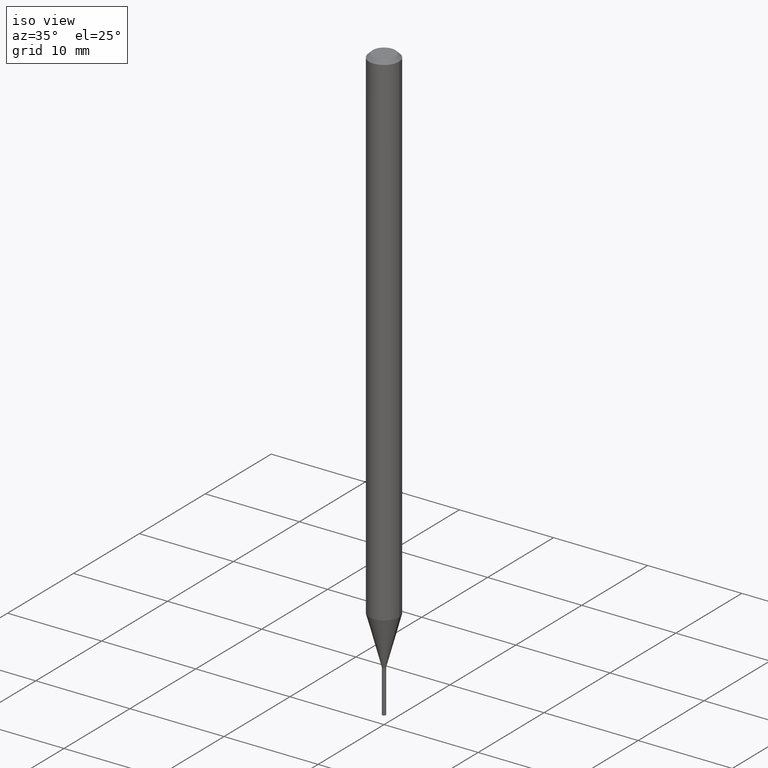
[diagram: clean part render]
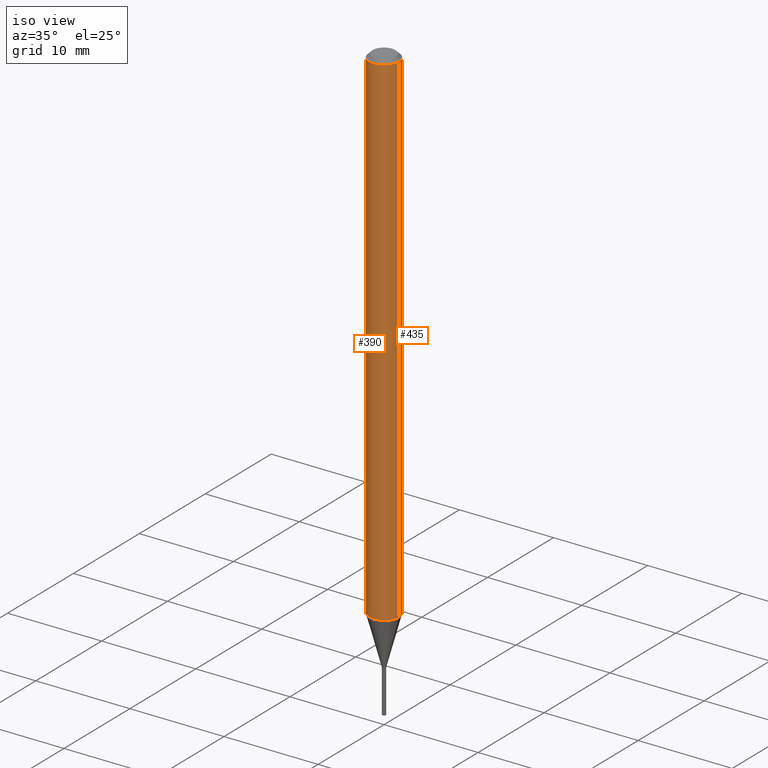
[diagram: same view with one multi-face feature highlighted, each face labeled with its STEP entity id]
A machine part, iso view. The highlighted faces form ONE feature: a constant-radius fillet chain: 2 tangent blend faces with common blend radius 1.5875 mm. The faces share edges in the B-rep.
Their STEP definitions:
[1] entity #390 (Cylinder):
#9 = ORIENTED_EDGE ( 'NONE', *, *, #178, .F. ) ;
#16 = CARTESIAN_POINT ( 'NONE',  ( -0.06250000000000000000, -6.939476280002764549E-15, -2.114737205583710811 ) ) ;
#44 = CARTESIAN_POINT ( 'NONE',  ( 5.171523869534089269E-29, -7.383565489852826376E-15, -2.114737205583710811 ) ) ;
#48 = VERTEX_POINT ( 'NONE', #207 ) ;
#77 = DIRECTION ( 'NONE',  ( -2.445468806185136597E-29, 3.491481338843145583E-15, 1.000000000000000000 ) ) ;
#82 = CARTESIAN_POINT ( 'NONE',  ( 0.06250000000000000000, -7.820000657208219623E-15, -2.114737205583710811 ) ) ;
#90 = DIRECTION ( 'NONE',  ( 1.000000000000000000, -6.982962677686266711E-15, 4.876176775795935793E-29 ) ) ;
#97 = CARTESIAN_POINT ( 'NONE',  ( 0.06250000000000000000, -4.888073874380388472E-16, -0.01499999999999999944 ) ) ;
#110 = ORIENTED_EDGE ( 'NONE', *, *, #237, .F. ) ;
#119 = CIRCLE ( 'NONE', #203, 0.06250000000000000000 ) ;
#122 = DIRECTION ( 'NONE',  ( 1.000000000000000000, -6.982962677686266711E-15, 0.000000000000000000 ) ) ;
#123 = ORIENTED_EDGE ( 'NONE', *, *, #255, .T. ) ;
#135 = AXIS2_PLACEMENT_3D ( 'NONE', #296, #77, #122 ) ;
#136 = DIRECTION ( 'NONE',  ( -2.445468806185136597E-29, 3.491481338843145583E-15, 1.000000000000000000 ) ) ;
#156 = DIRECTION ( 'NONE',  ( -2.445468806185136597E-29, 3.491481338843145583E-15, 1.000000000000000000 ) ) ;
#178 = EDGE_CURVE ( 'NONE', #290, #48, #354, .T. ) ;
#181 = CARTESIAN_POINT ( 'NONE',  ( -0.06250000000000000000, 4.440892098500626162E-16, -3.074334431409316114E-30 ) ) ;
#188 = DIRECTION ( 'NONE',  ( -2.445468806185136877E-29, 3.491481338843145188E-15, 1.000000000000000000 ) ) ;
#192 = EDGE_CURVE ( 'NONE', #248, #329, #388, .T. ) ;
#201 = CYLINDRICAL_SURFACE ( 'NONE', #253, 0.06250000000000000000 ) ;
#203 = AXIS2_PLACEMENT_3D ( 'NONE', #44, #156, #439 ) ;
#207 = CARTESIAN_POINT ( 'NONE',  ( -0.06250000000000000000, -3.273879645117674703E-15, -0.01499999999999999944 ) ) ;
#211 = VECTOR ( 'NONE', #188, 39.37007874015748143 ) ;
#237 = EDGE_CURVE ( 'NONE', #48, #329, #257, .T. ) ;
#248 = VERTEX_POINT ( 'NONE', #82 ) ;
#253 = AXIS2_PLACEMENT_3D ( 'NONE', #336, #136, #90 ) ;
#255 = EDGE_CURVE ( 'NONE', #290, #248, #119, .T. ) ;
#257 = CIRCLE ( 'NONE', #135, 0.06250000000000000000 ) ;
#259 = ORIENTED_EDGE ( 'NONE', *, *, #192, .T. ) ;
#265 = DIRECTION ( 'NONE',  ( -2.445468806185136877E-29, 3.491481338843145188E-15, 1.000000000000000000 ) ) ;
#290 = VERTEX_POINT ( 'NONE', #16 ) ;
#296 = CARTESIAN_POINT ( 'NONE',  ( 3.668203209277705088E-31, -5.237222008264718399E-17, -0.01499999999999999944 ) ) ;
#321 = EDGE_LOOP ( 'NONE', ( #9, #123, #259, #110 ) ) ;
#329 = VERTEX_POINT ( 'NONE', #97 ) ;
#336 = CARTESIAN_POINT ( 'NONE',  ( 0.000000000000000000, 0.000000000000000000, 0.000000000000000000 ) ) ;
#354 = LINE ( 'NONE', #181, #398 ) ;
#388 = LINE ( 'NONE', #431, #211 ) ;
#390 = ADVANCED_FACE ( 'NONE', ( #453 ), #201, .T. ) ;
#398 = VECTOR ( 'NONE', #265, 39.37007874015748143 ) ;
#431 = CARTESIAN_POINT ( 'NONE',  ( 0.06250000000000000000, -4.364351673553916694E-16, 3.047610484872459871E-30 ) ) ;
#439 = DIRECTION ( 'NONE',  ( 1.000000000000000000, -6.982962677686262766E-15, 0.000000000000000000 ) ) ;
#453 = FACE_OUTER_BOUND ( 'NONE', #321, .T. ) ;
[2] entity #435 (Cylinder):
#14 = EDGE_CURVE ( 'NONE', #329, #48, #350, .T. ) ;
#16 = CARTESIAN_POINT ( 'NONE',  ( -0.06250000000000000000, -6.939476280002764549E-15, -2.114737205583710811 ) ) ;
#22 = CARTESIAN_POINT ( 'NONE',  ( 0.000000000000000000, 0.000000000000000000, 0.000000000000000000 ) ) ;
#31 = AXIS2_PLACEMENT_3D ( 'NONE', #226, #190, #328 ) ;
#48 = VERTEX_POINT ( 'NONE', #207 ) ;
#55 = DIRECTION ( 'NONE',  ( -2.445468806185136597E-29, 3.491481338843145583E-15, 1.000000000000000000 ) ) ;
#82 = CARTESIAN_POINT ( 'NONE',  ( 0.06250000000000000000, -7.820000657208219623E-15, -2.114737205583710811 ) ) ;
#87 = ORIENTED_EDGE ( 'NONE', *, *, #192, .F. ) ;
#96 = CYLINDRICAL_SURFACE ( 'NONE', #377, 0.06250000000000000000 ) ;
#97 = CARTESIAN_POINT ( 'NONE',  ( 0.06250000000000000000, -4.888073874380388472E-16, -0.01499999999999999944 ) ) ;
#178 = EDGE_CURVE ( 'NONE', #290, #48, #354, .T. ) ;
#181 = CARTESIAN_POINT ( 'NONE',  ( -0.06250000000000000000, 4.440892098500626162E-16, -3.074334431409316114E-30 ) ) ;
#188 = DIRECTION ( 'NONE',  ( -2.445468806185136877E-29, 3.491481338843145188E-15, 1.000000000000000000 ) ) ;
#190 = DIRECTION ( 'NONE',  ( -2.445468806185136597E-29, 3.491481338843145583E-15, 1.000000000000000000 ) ) ;
#192 = EDGE_CURVE ( 'NONE', #248, #329, #388, .T. ) ;
#207 = CARTESIAN_POINT ( 'NONE',  ( -0.06250000000000000000, -3.273879645117674703E-15, -0.01499999999999999944 ) ) ;
#209 = DIRECTION ( 'NONE',  ( -2.445468806185136597E-29, 3.491481338843145583E-15, 1.000000000000000000 ) ) ;
#211 = VECTOR ( 'NONE', #188, 39.37007874015748143 ) ;
#226 = CARTESIAN_POINT ( 'NONE',  ( 5.171523869534089269E-29, -7.383565489852826376E-15, -2.114737205583710811 ) ) ;
#248 = VERTEX_POINT ( 'NONE', #82 ) ;
#251 = EDGE_CURVE ( 'NONE', #248, #290, #427, .T. ) ;
#263 = ORIENTED_EDGE ( 'NONE', *, *, #251, .T. ) ;
#265 = DIRECTION ( 'NONE',  ( -2.445468806185136877E-29, 3.491481338843145188E-15, 1.000000000000000000 ) ) ;
#271 = FACE_OUTER_BOUND ( 'NONE', #324, .T. ) ;
#277 = AXIS2_PLACEMENT_3D ( 'NONE', #361, #55, #295 ) ;
#290 = VERTEX_POINT ( 'NONE', #16 ) ;
#295 = DIRECTION ( 'NONE',  ( 1.000000000000000000, -6.982962677686266711E-15, 0.000000000000000000 ) ) ;
#307 = DIRECTION ( 'NONE',  ( 1.000000000000000000, -6.982962677686266711E-15, 4.876176775795935793E-29 ) ) ;
#324 = EDGE_LOOP ( 'NONE', ( #263, #384, #358, #87 ) ) ;
#328 = DIRECTION ( 'NONE',  ( 1.000000000000000000, -6.982962677686262766E-15, 0.000000000000000000 ) ) ;
#329 = VERTEX_POINT ( 'NONE', #97 ) ;
#350 = CIRCLE ( 'NONE', #277, 0.06250000000000000000 ) ;
#354 = LINE ( 'NONE', #181, #398 ) ;
#358 = ORIENTED_EDGE ( 'NONE', *, *, #14, .F. ) ;
#361 = CARTESIAN_POINT ( 'NONE',  ( 3.668203209277705088E-31, -5.237222008264718399E-17, -0.01499999999999999944 ) ) ;
#377 = AXIS2_PLACEMENT_3D ( 'NONE', #22, #209, #307 ) ;
#384 = ORIENTED_EDGE ( 'NONE', *, *, #178, .T. ) ;
#388 = LINE ( 'NONE', #431, #211 ) ;
#398 = VECTOR ( 'NONE', #265, 39.37007874015748143 ) ;
#427 = CIRCLE ( 'NONE', #31, 0.06250000000000000000 ) ;
#431 = CARTESIAN_POINT ( 'NONE',  ( 0.06250000000000000000, -4.364351673553916694E-16, 3.047610484872459871E-30 ) ) ;
#435 = ADVANCED_FACE ( 'NONE', ( #271 ), #96, .T. ) ;